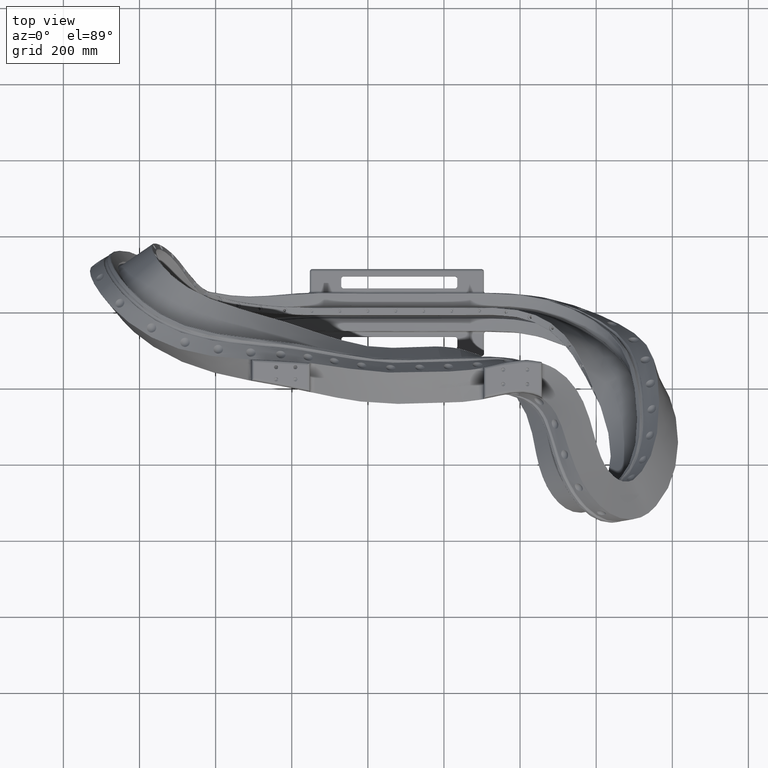
[diagram: clean part render]
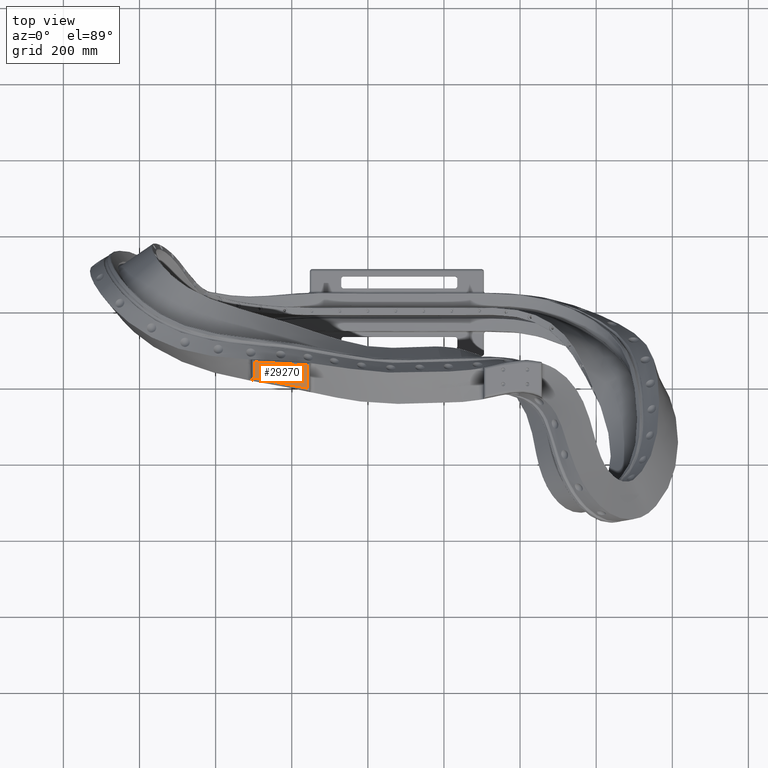
[diagram: same view with one face highlighted and labeled with its STEP entity id]
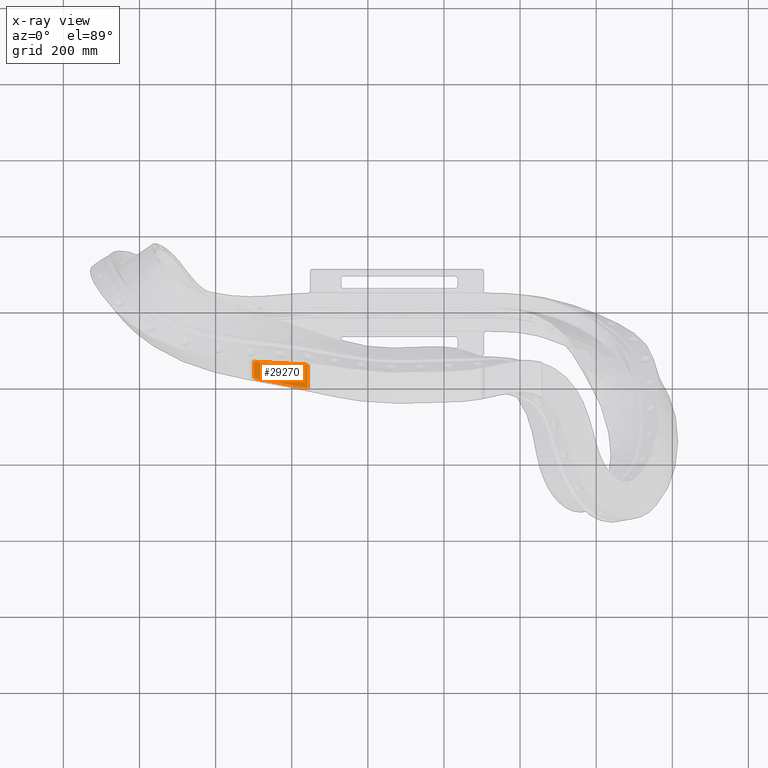
[diagram: x-ray of the same camera — body ghosted, the highlighted face saturated]
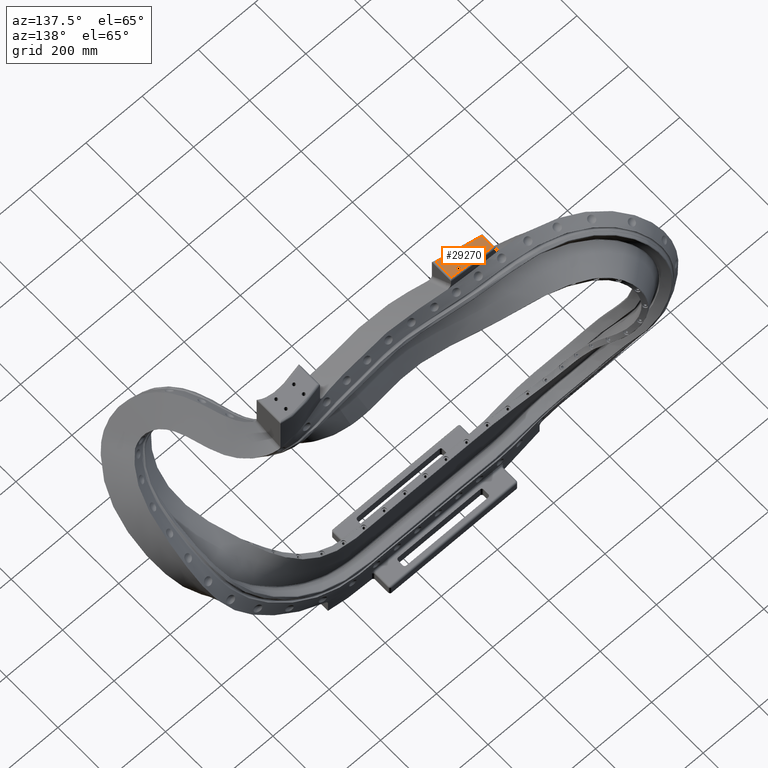
[diagram: same view with one face highlighted and labeled with its STEP entity id]
A machine part, top view. The second image highlights one B-rep face of the part: STEP entity #29270.
The next image is the same camera in x-ray: the body ghosted, the highlighted face saturated — about 0% of this face is hidden behind the body in this view.
A second angle (auxiliary view) of the same face is appended — the face is thin or edge-on in the first view.
In plain terms, the highlighted planar face has unit normal (0, 0, -1).
Its self-contained STEP definition (entity closure, byte-faithful):
#6994=DIRECTION('',(-2.481495158222E-12,-1.E0,-2.275616467714E-8));
#6995=VECTOR('',#6994,1.672205389195E0);
#6996=CARTESIAN_POINT('',(-1.175E1,-5.681252299121E0,1.700000003805E1));
#6997=LINE('',#6996,#6995);
#6998=CARTESIAN_POINT('',(-6.249999999945E0,-6.004940984415E0,
1.699999977286E1));
#6999=CARTESIAN_POINT('',(-6.627640456924E0,-5.966218228132E0,
1.699999941797E1));
#7000=CARTESIAN_POINT('',(-7.357294290713E0,-5.900517422953E0,
1.700000026998E1));
#7001=CARTESIAN_POINT('',(-8.371534888325E0,-5.832592105892E0,
1.699999992813E1));
#7002=CARTESIAN_POINT('',(-9.313801486389E0,-5.784702418216E0,
1.700000001751E1));
#7003=CARTESIAN_POINT('',(-1.018875517270E1,-5.748009669629E0,
1.700000000183E1));
#7004=CARTESIAN_POINT('',(-1.100117698787E1,-5.715253143475E0,
1.699999997516E1));
#7005=CARTESIAN_POINT('',(-1.150672885467E1,-5.692868313920E0,
1.700000005674E1));
#7006=CARTESIAN_POINT('',(-1.175E1,-5.681252299121E0,1.700000003805E1));
#7008=DIRECTION('',(2.306748750552E-11,1.E0,-9.466777971890E-8));
#7009=VECTOR('',#7008,2.399344020902E0);
#7010=CARTESIAN_POINT('',(-6.25E0,-8.404285005318E0,1.7E1));
#7011=LINE('',#7010,#7009);
#7012=CARTESIAN_POINT('',(-1.175E1,-7.353457688315E0,1.7E1));
#7013=CARTESIAN_POINT('',(-1.121037500695E1,-7.450535685183E0,1.7E1));
#7014=CARTESIAN_POINT('',(-1.008214214387E1,-7.647592832376E0,1.7E1));
#7015=CARTESIAN_POINT('',(-8.254687580131E0,-7.982222757525E0,1.7E1));
#7016=CARTESIAN_POINT('',(-6.934663446075E0,-8.257172038013E0,1.7E1));
#7017=CARTESIAN_POINT('',(-6.25E0,-8.404285005318E0,1.7E1));
#7019=CARTESIAN_POINT('',(-7.5E0,-7.5E0,1.7E1));
#7020=DIRECTION('',(0.E0,0.E0,1.E0));
#7021=DIRECTION('',(1.E0,0.E0,0.E0));
#7022=AXIS2_PLACEMENT_3D('',#7019,#7020,#7021);
#7024=CARTESIAN_POINT('',(-7.5E0,-7.5E0,1.7E1));
#7025=DIRECTION('',(0.E0,0.E0,1.E0));
#7026=DIRECTION('',(-1.E0,0.E0,0.E0));
#7027=AXIS2_PLACEMENT_3D('',#7024,#7025,#7026);
#7029=CARTESIAN_POINT('',(-7.5E0,-6.25E0,1.7E1));
#7030=DIRECTION('',(0.E0,0.E0,1.E0));
#7031=DIRECTION('',(1.E0,0.E0,0.E0));
#7032=AXIS2_PLACEMENT_3D('',#7029,#7030,#7031);
#7034=CARTESIAN_POINT('',(-7.5E0,-6.25E0,1.7E1));
#7035=DIRECTION('',(0.E0,0.E0,1.E0));
#7036=DIRECTION('',(-1.E0,0.E0,0.E0));
#7037=AXIS2_PLACEMENT_3D('',#7034,#7035,#7036);
#7039=CARTESIAN_POINT('',(-9.5E0,-7.5E0,1.7E1));
#7040=DIRECTION('',(0.E0,0.E0,1.E0));
#7041=DIRECTION('',(1.E0,0.E0,0.E0));
#7042=AXIS2_PLACEMENT_3D('',#7039,#7040,#7041);
#7044=CARTESIAN_POINT('',(-9.5E0,-7.5E0,1.7E1));
#7045=DIRECTION('',(0.E0,0.E0,1.E0));
#7046=DIRECTION('',(-1.E0,0.E0,0.E0));
#7047=AXIS2_PLACEMENT_3D('',#7044,#7045,#7046);
#7049=CARTESIAN_POINT('',(-9.5E0,-6.25E0,1.7E1));
#7050=DIRECTION('',(0.E0,0.E0,1.E0));
#7051=DIRECTION('',(1.E0,0.E0,0.E0));
#7052=AXIS2_PLACEMENT_3D('',#7049,#7050,#7051);
#7054=CARTESIAN_POINT('',(-9.5E0,-6.25E0,1.7E1));
#7055=DIRECTION('',(0.E0,0.E0,1.E0));
#7056=DIRECTION('',(-1.E0,0.E0,0.E0));
#7057=AXIS2_PLACEMENT_3D('',#7054,#7055,#7056);
#12493=CARTESIAN_POINT('',(-1.175E1,-5.681252299121E0,1.700000003805E1));
#12494=CARTESIAN_POINT('',(-1.175E1,-7.353457688315E0,1.7E1));
#12495=VERTEX_POINT('',#12493);
#12496=VERTEX_POINT('',#12494);
#12502=VERTEX_POINT('',#6998);
#12505=CARTESIAN_POINT('',(-6.25E0,-8.404285005318E0,1.7E1));
#12506=VERTEX_POINT('',#12505);
#12660=CARTESIAN_POINT('',(-7.28905E0,-7.5E0,1.7E1));
#12661=CARTESIAN_POINT('',(-7.71095E0,-7.5E0,1.7E1));
#12662=VERTEX_POINT('',#12660);
#12663=VERTEX_POINT('',#12661);
#12670=CARTESIAN_POINT('',(-7.28905E0,-6.25E0,1.7E1));
#12671=CARTESIAN_POINT('',(-7.71095E0,-6.25E0,1.7E1));
#12672=VERTEX_POINT('',#12670);
#12673=VERTEX_POINT('',#12671);
#12680=CARTESIAN_POINT('',(-9.28905E0,-7.5E0,1.7E1));
#12681=CARTESIAN_POINT('',(-9.71095E0,-7.5E0,1.7E1));
#12682=VERTEX_POINT('',#12680);
#12683=VERTEX_POINT('',#12681);
#12690=CARTESIAN_POINT('',(-9.28905E0,-6.25E0,1.7E1));
#12691=CARTESIAN_POINT('',(-9.71095E0,-6.25E0,1.7E1));
#12692=VERTEX_POINT('',#12690);
#12693=VERTEX_POINT('',#12691);
#29232=CARTESIAN_POINT('',(0.E0,0.E0,1.7E1));
#29233=DIRECTION('',(0.E0,0.E0,-1.E0));
#29234=DIRECTION('',(1.E0,0.E0,0.E0));
#29235=AXIS2_PLACEMENT_3D('',#29232,#29233,#29234);
#29236=PLANE('',#29235);
#29238=ORIENTED_EDGE('',*,*,#29237,.F.);
#29240=ORIENTED_EDGE('',*,*,#29239,.F.);
#29242=ORIENTED_EDGE('',*,*,#29241,.F.);
#29243=ORIENTED_EDGE('',*,*,#29222,.F.);
#29244=EDGE_LOOP('',(#29238,#29240,#29242,#29243));
#29245=FACE_OUTER_BOUND('',#29244,.F.);
#29247=ORIENTED_EDGE('',*,*,#29246,.T.);
#29249=ORIENTED_EDGE('',*,*,#29248,.T.);
#29250=EDGE_LOOP('',(#29247,#29249));
#29251=FACE_BOUND('',#29250,.F.);
#29253=ORIENTED_EDGE('',*,*,#29252,.T.);
#29255=ORIENTED_EDGE('',*,*,#29254,.T.);
#29256=EDGE_LOOP('',(#29253,#29255));
#29257=FACE_BOUND('',#29256,.F.);
#29259=ORIENTED_EDGE('',*,*,#29258,.T.);
#29261=ORIENTED_EDGE('',*,*,#29260,.T.);
#29262=EDGE_LOOP('',(#29259,#29261));
#29263=FACE_BOUND('',#29262,.F.);
#29265=ORIENTED_EDGE('',*,*,#29264,.T.);
#29267=ORIENTED_EDGE('',*,*,#29266,.T.);
#29268=EDGE_LOOP('',(#29265,#29267));
#29269=FACE_BOUND('',#29268,.F.);
#29270=ADVANCED_FACE('',(#29245,#29251,#29257,#29263,#29269),#29236,.F.);
#7007=B_SPLINE_CURVE_WITH_KNOTS('',3,(#6998,#6999,#7000,#7001,#7002,#7003,#7004,
#7005,#7006),.UNSPECIFIED.,.F.,.F.,(4,1,1,1,1,1,4),(0.E0,1.666666666667E-1,
3.333333333333E-1,5.E-1,6.666666666667E-1,8.333333333333E-1,1.E0),
.UNSPECIFIED.);
#7018=B_SPLINE_CURVE_WITH_KNOTS('',3,(#7012,#7013,#7014,#7015,#7016,#7017),
.UNSPECIFIED.,.F.,.F.,(4,1,1,4),(0.E0,3.333333333333E-1,6.666666666667E-1,1.E0),
.UNSPECIFIED.);
#7023=CIRCLE('',#7022,2.1095E-1);
#7028=CIRCLE('',#7027,2.1095E-1);
#7033=CIRCLE('',#7032,2.1095E-1);
#7038=CIRCLE('',#7037,2.1095E-1);
#7043=CIRCLE('',#7042,2.1095E-1);
#7048=CIRCLE('',#7047,2.1095E-1);
#7053=CIRCLE('',#7052,2.1095E-1);
#7058=CIRCLE('',#7057,2.1095E-1);
#29222=EDGE_CURVE('',#12496,#12506,#7018,.T.);
#29237=EDGE_CURVE('',#12495,#12496,#6997,.T.);
#29239=EDGE_CURVE('',#12502,#12495,#7007,.T.);
#29241=EDGE_CURVE('',#12506,#12502,#7011,.T.);
#29246=EDGE_CURVE('',#12662,#12663,#7023,.T.);
#29248=EDGE_CURVE('',#12663,#12662,#7028,.T.);
#29252=EDGE_CURVE('',#12672,#12673,#7033,.T.);
#29254=EDGE_CURVE('',#12673,#12672,#7038,.T.);
#29258=EDGE_CURVE('',#12682,#12683,#7043,.T.);
#29260=EDGE_CURVE('',#12683,#12682,#7048,.T.);
#29264=EDGE_CURVE('',#12692,#12693,#7053,.T.);
#29266=EDGE_CURVE('',#12693,#12692,#7058,.T.);